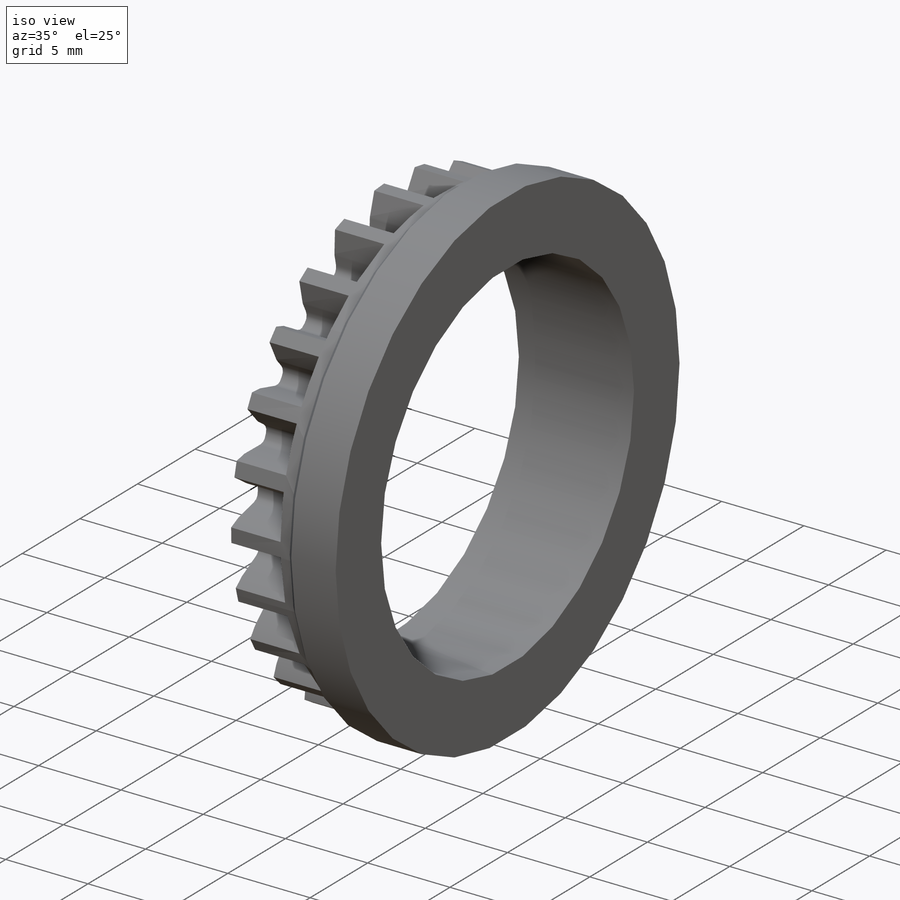
[diagram: iso view]
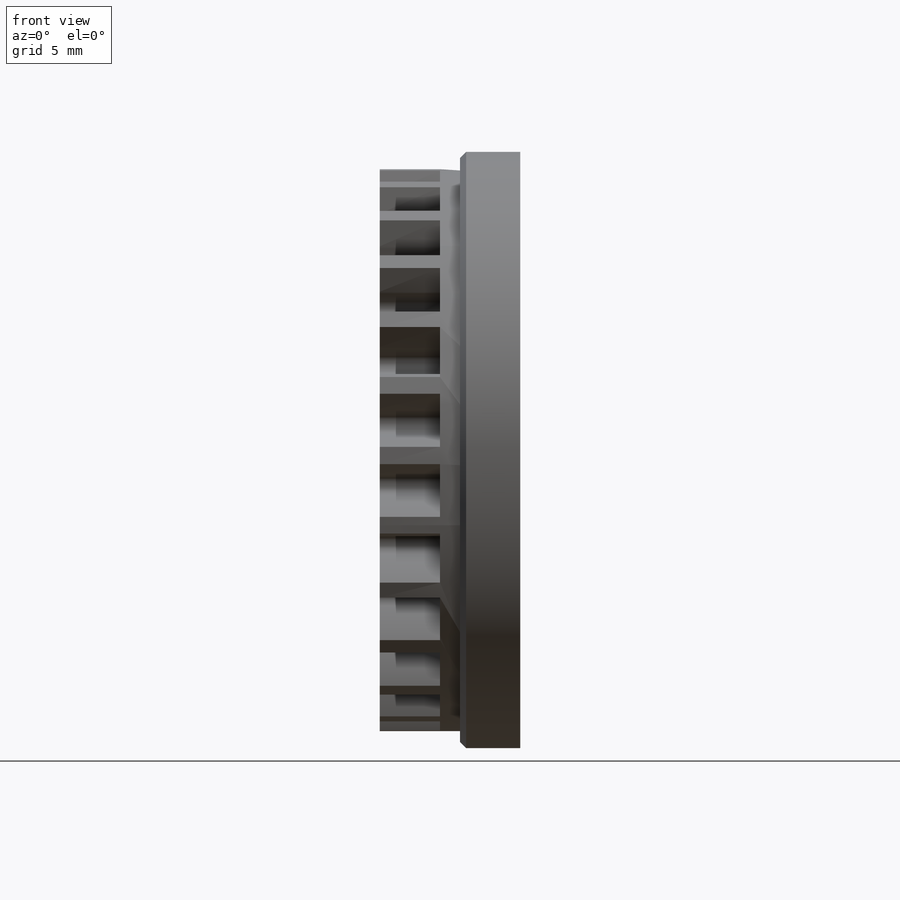
[diagram: front view]
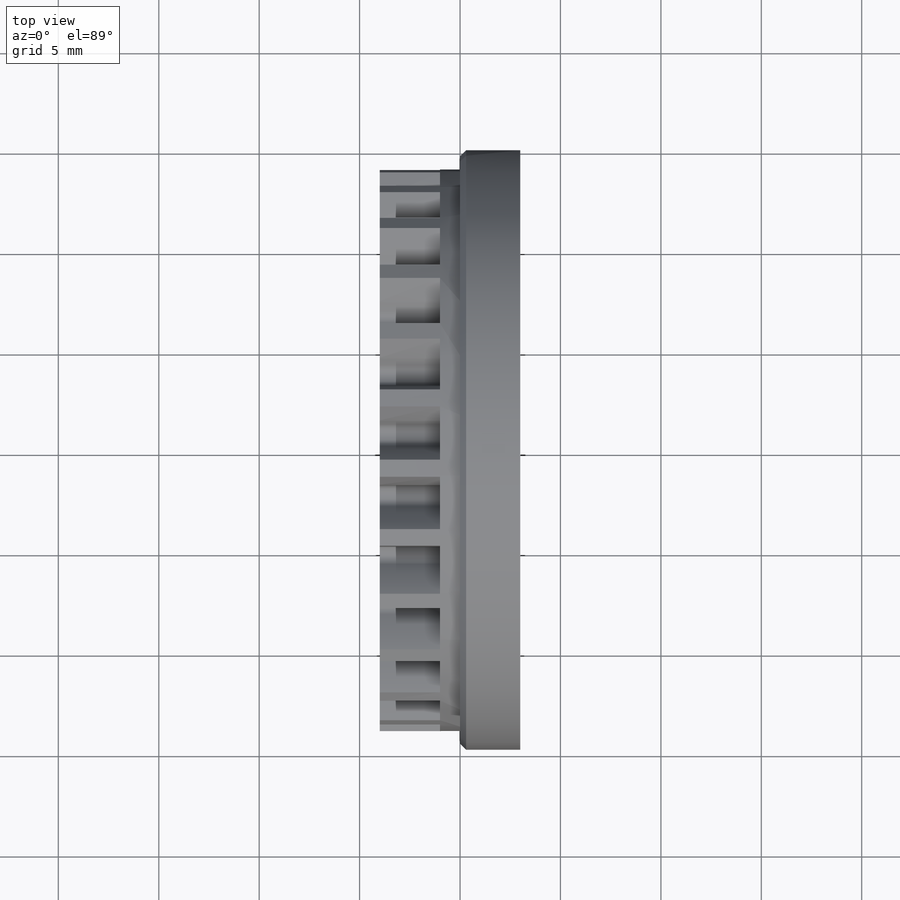
[diagram: top view]
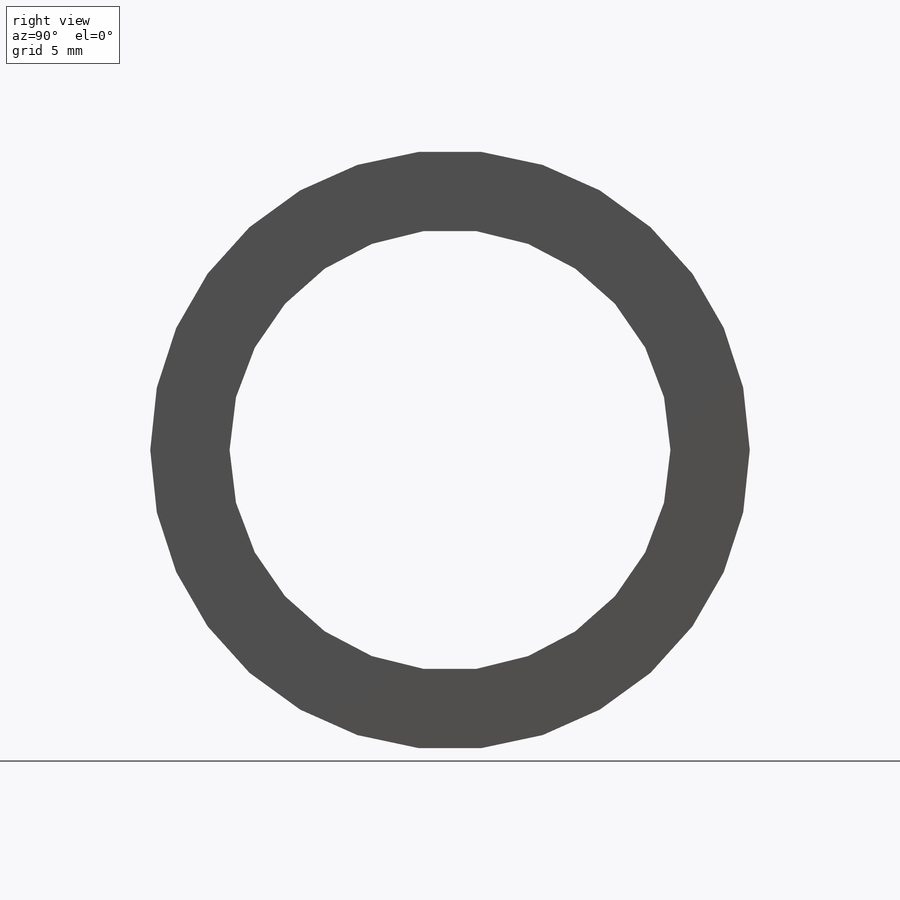
[diagram: right view]
SOLIDWORKS PART (.sldprt)
format: sldprt  version: not decoded by parser v0  size: 397,312 bytes
history: native  units: mm
features: sketch x4, plane x2, revolve x2, cut_extrude x2, material x1, pattern_circular x1 (+12 scaffold rows collapsed)
feature tree (24):
  scaffold x12  (default folders/planes/origin — collapsed)
  material  "Material <not specified>"
  plane  "Plane2"
  sketch  "Sketch33"  dims[D1=10.975mm]
  revolve  "Revolve2"  Angle=360deg
  sketch  "Sketch38"
  revolve  "Revolve3"  Angle=360deg
  plane  "Plane3"
  sketch  "Sketch43"
  cut_extrude  "Cut-Extrude27"  Depth=3mm
  pattern_circular  "CirPattern2"  Count=25 Angle=360deg
  sketch  "Sketch196"  dims[D1=21.95mm]
  cut_extrude  "Cut-Extrude53"  [1 undecoded]
decode coverage: 6 of 9 modeling features carry decoded parameters
note: 1 parameter value undecoded
note: suppression state not decoded; provenance and decode notes live in map.json
